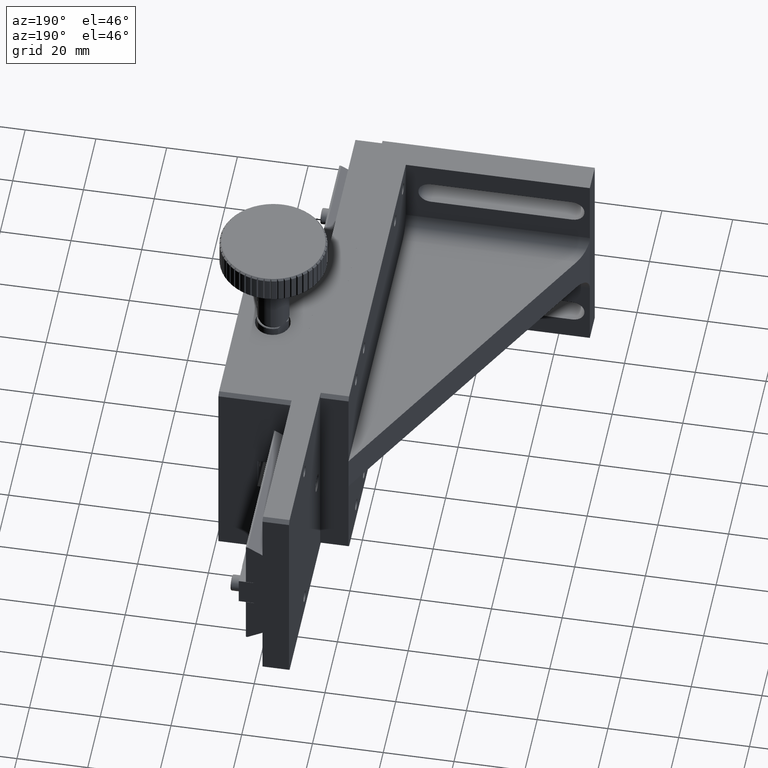
[diagram: clean part render]
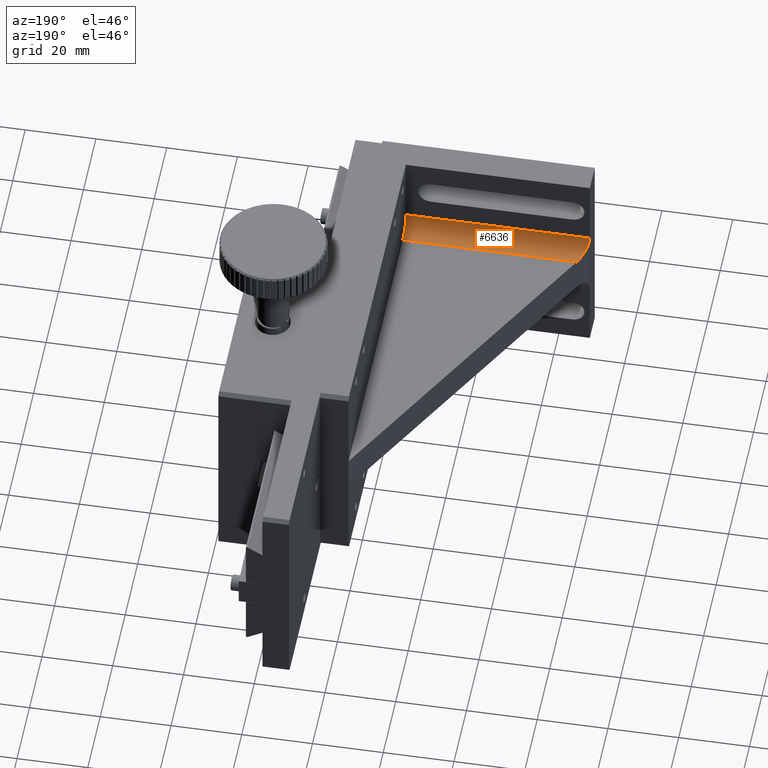
[diagram: same view with one face highlighted and labeled with its STEP entity id]
A machine part, auxiliary view. The second image highlights one B-rep face of the part: STEP entity #6636.
In plain terms, the highlighted cylindrical surface (edge-blend (fillet) strip) has radius 5 mm, axis along (1, -0, -0).
Its self-contained STEP definition (entity closure, byte-faithful):
#230 = CARTESIAN_POINT ( 'NONE',  ( 41.13262096468594819, 63.81536696983123846, 102.7794056282235573 ) ) ;
#1656 = CIRCLE ( 'NONE', #61965, 5.000000000000004441 ) ;
#6074 = EDGE_CURVE ( 'NONE', #79028, #59091, #43903, .T. ) ;
#6636 = ADVANCED_FACE ( 'NONE', ( #75783 ), #69256, .F. ) ;
#7802 = CARTESIAN_POINT ( 'NONE',  ( -9.696775489477206023, 65.88643478169672107, 97.77940562822354309 ) ) ;
#9394 = CARTESIAN_POINT ( 'NONE',  ( 41.13262096468577056, 68.81536696983124557, 97.77940562822321624 ) ) ;
#11530 = CARTESIAN_POINT ( 'NONE',  ( 41.13262096468580609, 68.81536696983124557, 102.7794056282231878 ) ) ;
#14849 = CARTESIAN_POINT ( 'NONE',  ( -10.86737903531419569, 63.81536696983123846, 99.85047344008903281 ) ) ;
#23155 = AXIS2_PLACEMENT_3D ( 'NONE', #101080, #92485, #44440 ) ;
#25079 = LINE ( 'NONE', #230, #50923 ) ;
#26058 = ORIENTED_EDGE ( 'NONE', *, *, #28948, .T. ) ;
#28948 = EDGE_CURVE ( 'NONE', #59091, #53565, #25079, .T. ) ;
#30201 = ORIENTED_EDGE ( 'NONE', *, *, #6074, .T. ) ;
#34153 = VECTOR ( 'NONE', #43694, 1000.000000000000000 ) ;
#34372 = EDGE_CURVE ( 'NONE', #56736, #79028, #66375, .T. ) ;
#43178 = CARTESIAN_POINT ( 'NONE',  ( 19.13262096468578477, 68.81536696983124557, 97.77940562822334414 ) ) ;
#43694 = DIRECTION ( 'NONE',  ( -1.000000000000000000, 0.000000000000000000, 6.982962677686266711E-15 ) ) ;
#43903 =( BOUNDED_CURVE ( )  B_SPLINE_CURVE ( 3, ( #48827, #7802, #14849, #97372 ),
 .UNSPECIFIED., .F., .F. ) 
 B_SPLINE_CURVE_WITH_KNOTS ( ( 4, 4 ),
 ( 1.570796326794899445, 3.141592653589792228 ),
 .UNSPECIFIED. ) 
 CURVE ( )  GEOMETRIC_REPRESENTATION_ITEM ( )  RATIONAL_B_SPLINE_CURVE ( ( 1.000000000000000000, 0.8047378541243658256, 0.8047378541243658256, 1.000000000000000000 ) ) 
 REPRESENTATION_ITEM ( '' )  );
#44440 = DIRECTION ( 'NONE',  ( -6.938893903907222067E-15, 0.000000000000000000, -1.000000000000000000 ) ) ;
#44446 = DIRECTION ( 'NONE',  ( -6.938893903907222067E-15, 0.000000000000000000, -1.000000000000000000 ) ) ;
#46961 = CARTESIAN_POINT ( 'NONE',  ( -10.86737903531417437, 63.81536696983125267, 102.7794056282235431 ) ) ;
#48827 = CARTESIAN_POINT ( 'NONE',  ( -8.041292078792478648, 68.81536696983123136, 97.77940562822345782 ) ) ;
#49130 = EDGE_CURVE ( 'NONE', #53565, #56736, #1656, .T. ) ;
#50524 = ORIENTED_EDGE ( 'NONE', *, *, #34372, .T. ) ;
#50923 = VECTOR ( 'NONE', #106540, 1000.000000000000000 ) ;
#53565 = VERTEX_POINT ( 'NONE', #90517 ) ;
#54973 = EDGE_LOOP ( 'NONE', ( #50524, #30201, #26058, #55854 ) ) ;
#55854 = ORIENTED_EDGE ( 'NONE', *, *, #49130, .T. ) ;
#56736 = VERTEX_POINT ( 'NONE', #9394 ) ;
#56809 = CARTESIAN_POINT ( 'NONE',  ( -8.041292078792478648, 68.81536696983123136, 97.77940562822345782 ) ) ;
#59091 = VERTEX_POINT ( 'NONE', #46961 ) ;
#61965 = AXIS2_PLACEMENT_3D ( 'NONE', #11530, #85479, #44446 ) ;
#66375 = LINE ( 'NONE', #43178, #34153 ) ;
#69256 = CYLINDRICAL_SURFACE ( 'NONE', #23155, 5.000000000000004441 ) ;
#75783 = FACE_OUTER_BOUND ( 'NONE', #54973, .T. ) ;
#79028 = VERTEX_POINT ( 'NONE', #56809 ) ;
#85479 = DIRECTION ( 'NONE',  ( 1.000000000000000000, -1.334402673828313339E-16, -6.982962677686266711E-15 ) ) ;
#90517 = CARTESIAN_POINT ( 'NONE',  ( 41.13262096468580609, 63.81536696983123846, 102.7794056282233868 ) ) ;
#92485 = DIRECTION ( 'NONE',  ( 1.000000000000000000, -1.334402673828313339E-16, -6.982962677686266711E-15 ) ) ;
#97372 = CARTESIAN_POINT ( 'NONE',  ( -10.86737903531417437, 63.81536696983125267, 102.7794056282235431 ) ) ;
#101080 = CARTESIAN_POINT ( 'NONE',  ( 41.13262096468581319, 68.81536696983124557, 102.7794056282231878 ) ) ;
#106540 = DIRECTION ( 'NONE',  ( 1.000000000000000000, -1.334402673828313339E-16, 0.000000000000000000 ) ) ;